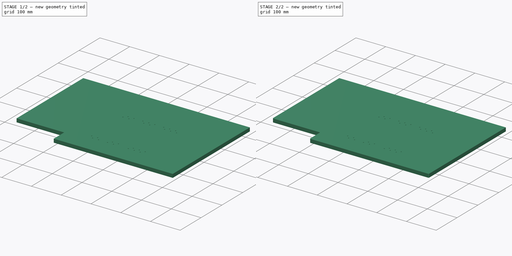
[diagram: build sequence overview — one tinted view per stage of 2, left to right]
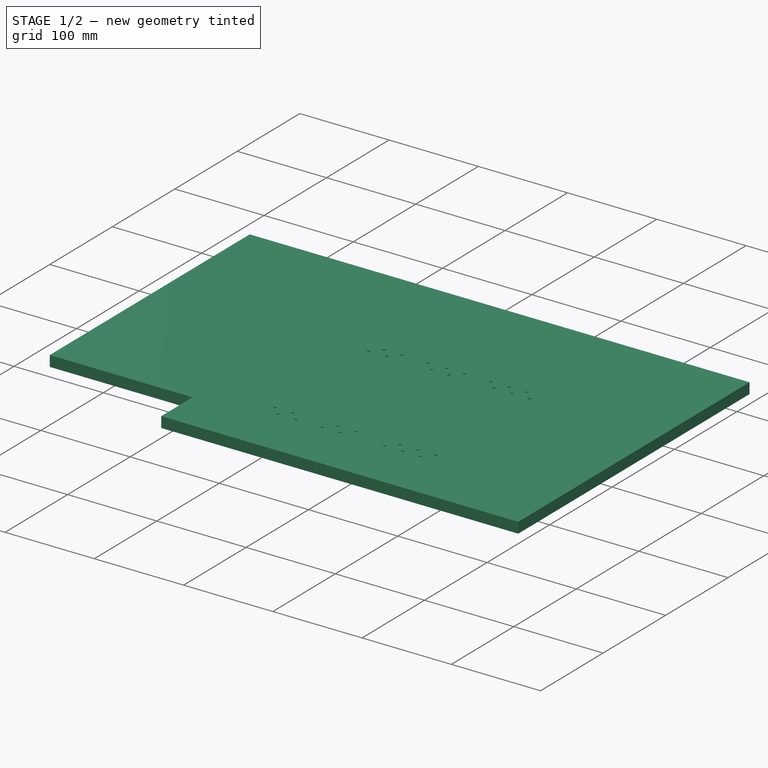
[diagram: stage 1 of 2 — iso view after this stage's code; geometry added in this stage tinted green]
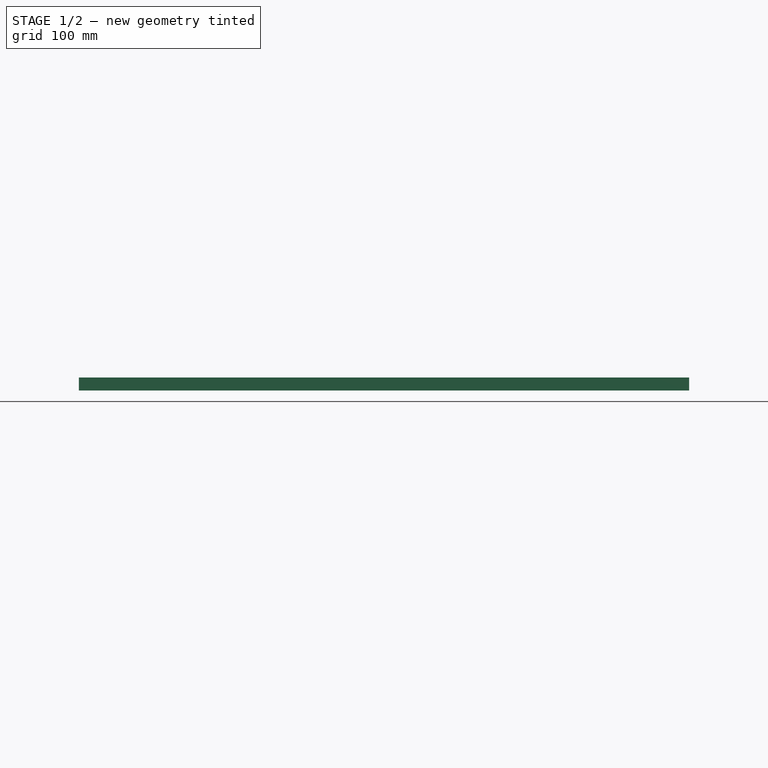
[diagram: stage 1 of 2 — front view after this stage's code; geometry added in this stage tinted green]
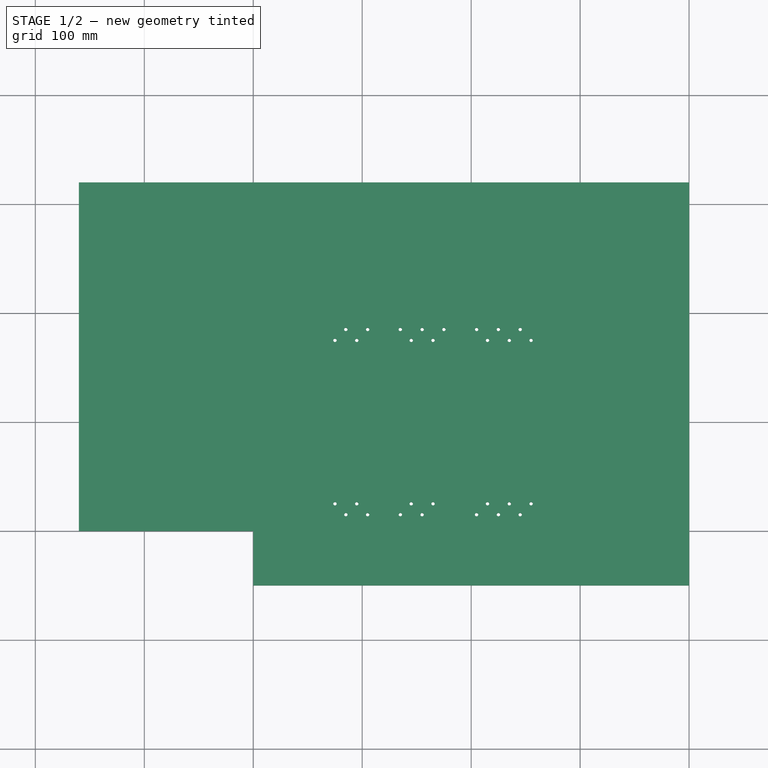
[diagram: stage 1 of 2 — top view after this stage's code; geometry added in this stage tinted green]
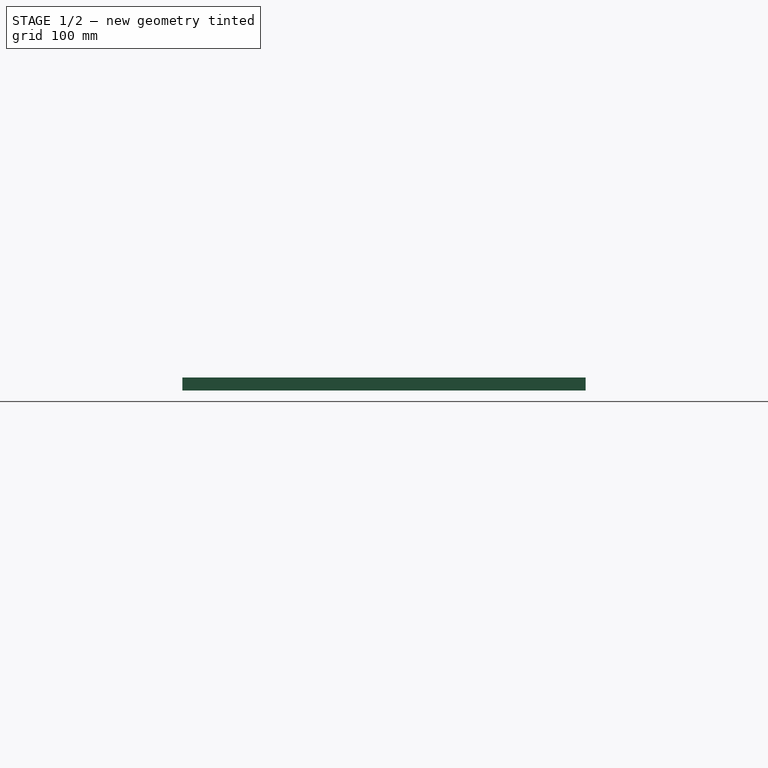
[diagram: stage 1 of 2 — right view after this stage's code; geometry added in this stage tinted green]
FCSTD DOCUMENT  (FreeCAD 0.19R24276 (Git))
Label: Osnovanie_3700x560x12_H12_as5
License: All rights reserved
LicenseURL: http://en.wikipedia.org/wiki/All_rights_reserved
objects: Sketcher::SketchObject×1, PartDesign::Pad×1, PartDesign::Fillet×1, PartDesign::Body×1
note: 6 computed .brp shape members not serialized (recipe doc carries the construction recipe); baked Part::Feature solids carry a one-line shape summary decoded from their .brp

FEATURE [Sketcher::SketchObject] Sketch  label="Sketch_370x560"
  FullyConstrained = true
  MapMode = 5
  Support = -> [XY_Plane]
  sketch-geometry (86):
    g0: LineSegment StartX=0 StartY=0 StartZ=0 EndX=400 EndY=0 EndZ=0
    g1: LineSegment StartX=400 StartY=0 StartZ=0 EndX=400 EndY=200 EndZ=0
    g2: LineSegment StartX=400 StartY=200 StartZ=0 EndX=0 EndY=200 EndZ=0
    g3: LineSegment StartX=0 StartY=200 StartZ=0 EndX=0 EndY=0 EndZ=0
    g4: LineSegment StartX=0 StartY=100 StartZ=0 EndX=400 EndY=100 EndZ=0
    g5: Circle CenterX=120 CenterY=100 CenterZ=0 NormalX=0 NormalY=0 NormalZ=1 AngleXU=0 Radius=110
    g6: LineSegment StartX=120 StartY=100 StartZ=0 EndX=120 EndY=0 EndZ=0
    g7: LineSegment StartX=55 StartY=0 StartZ=0 EndX=185 EndY=0 EndZ=0
    g8: LineSegment StartX=185 StartY=0 StartZ=0 EndX=185 EndY=40 EndZ=0
    g9: LineSegment StartX=185 StartY=40 StartZ=0 EndX=55 EndY=40 EndZ=0
    g10: LineSegment StartX=55 StartY=40 StartZ=0 EndX=55 EndY=0 EndZ=0
    g11: LineSegment StartX=55 StartY=25 StartZ=0 EndX=185 EndY=25 EndZ=0
    g12: LineSegment StartX=55 StartY=15 StartZ=0 EndX=185 EndY=15 EndZ=0
    g13: Circle CenterX=85 CenterY=15 CenterZ=0 NormalX=0 NormalY=0 NormalZ=1 AngleXU=0 Radius=1.5625
    g14: Circle CenterX=105 CenterY=15 CenterZ=0 NormalX=0 NormalY=0 NormalZ=1 AngleXU=0 Radius=1.5625
    g15: Circle CenterX=75 CenterY=25 CenterZ=0 NormalX=0 NormalY=0 NormalZ=1 AngleXU=0 Radius=1.5625
    g16: Circle CenterX=95 CenterY=25 CenterZ=0 NormalX=0 NormalY=0 NormalZ=1 AngleXU=0 Radius=1.5625
    g17: Circle CenterX=155 CenterY=15 CenterZ=0 NormalX=0 NormalY=0 NormalZ=1 AngleXU=0 Radius=1.5625
    g18: Circle CenterX=135 CenterY=15 CenterZ=0 NormalX=0 NormalY=0 NormalZ=1 AngleXU=0 Radius=1.5625
    g19: Circle CenterX=145 CenterY=25 CenterZ=0 NormalX=0 NormalY=0 NormalZ=1 AngleXU=0 Radius=1.5625
    g20: Circle CenterX=165 CenterY=25 CenterZ=0 NormalX=0 NormalY=0 NormalZ=1 AngleXU=0 Radius=1.5625
    g21: LineSegment StartX=55 StartY=200 StartZ=0 EndX=185 EndY=200 EndZ=0
    g22: LineSegment StartX=185 StartY=200 StartZ=0 EndX=185 EndY=160 EndZ=0
    g23: LineSegment StartX=185 StartY=160 StartZ=0 EndX=55 EndY=160 EndZ=0
    g24: LineSegment StartX=55 StartY=160 StartZ=0 EndX=55 EndY=200 EndZ=0
    g25: LineSegment StartX=55 StartY=175 StartZ=0 EndX=185 EndY=175 EndZ=0
    g26: LineSegment StartX=55 StartY=185 StartZ=0 EndX=185 EndY=185 EndZ=0
    g27: Circle CenterX=85 CenterY=185 CenterZ=0 NormalX=0 NormalY=0 NormalZ=1 AngleXU=0 Radius=1.5625
    g28: Circle CenterX=105 CenterY=185 CenterZ=0 NormalX=0 NormalY=0 NormalZ=1 AngleXU=0 Radius=1.5625
    g29: Circle CenterX=75 CenterY=175 CenterZ=0 NormalX=0 NormalY=0 NormalZ=1 AngleXU=0 Radius=1.5625
    g30: Circle CenterX=95 CenterY=175 CenterZ=0 NormalX=0 NormalY=0 NormalZ=1 AngleXU=0 Radius=1.5625
    g31: Circle CenterX=155 CenterY=185 CenterZ=0 NormalX=0 NormalY=0 NormalZ=1 AngleXU=0 Radius=1.5625
    g32: Circle CenterX=135 CenterY=185 CenterZ=0 NormalX=0 NormalY=0 NormalZ=1 AngleXU=0 Radius=1.5625
    g33: Circle CenterX=145 CenterY=175 CenterZ=0 NormalX=0 NormalY=0 NormalZ=1 AngleXU=0 Radius=1.5625
    g34: Circle CenterX=165 CenterY=175 CenterZ=0 NormalX=0 NormalY=0 NormalZ=1 AngleXU=0 Radius=1.5625
    g35: LineSegment StartX=400 StartY=0 StartZ=0 EndX=0 EndY=0 EndZ=0
    g36: LineSegment StartX=0 StartY=0 StartZ=0 EndX=0 EndY=-50 EndZ=0
    g37: LineSegment StartX=0 StartY=-50 StartZ=0 EndX=400 EndY=-50 EndZ=0
    g38: LineSegment StartX=400 StartY=-50 StartZ=0 EndX=400 EndY=0 EndZ=0
    g39: LineSegment StartX=400 StartY=320 StartZ=0 EndX=400 EndY=200 EndZ=0
    g40: LineSegment StartX=120 StartY=0 StartZ=0 EndX=-160 EndY=0 EndZ=0
    g41: LineSegment StartX=-160 StartY=0 StartZ=0 EndX=-160 EndY=320 EndZ=0
    g42: LineSegment StartX=-160 StartY=320 StartZ=0 EndX=120 EndY=320 EndZ=0
    g43: LineSegment StartX=120 StartY=320 StartZ=0 EndX=120 EndY=0 EndZ=0
    g44: LineSegment StartX=185 StartY=0 StartZ=0 EndX=185 EndY=-50 EndZ=0
    g45: LineSegment StartX=155 StartY=0 StartZ=0 EndX=155 EndY=-50 EndZ=0
    g46: LineSegment StartX=185 StartY=0 StartZ=0 EndX=205 EndY=0 EndZ=0
    g47: LineSegment StartX=205 StartY=0 StartZ=0 EndX=205 EndY=-20 EndZ=0
    g48: LineSegment StartX=205 StartY=-20 StartZ=0 EndX=185 EndY=-20 EndZ=0
    g49: LineSegment StartX=185 StartY=-20 StartZ=0 EndX=185 EndY=0 EndZ=0
    g50: LineSegment StartX=240 StartY=210 StartZ=0 EndX=40 EndY=210 EndZ=0
    g51: LineSegment StartX=40 StartY=210 StartZ=0 EndX=40 EndY=317 EndZ=0
    g52: LineSegment StartX=40 StartY=317 StartZ=0 EndX=240 EndY=317 EndZ=0
    g53: LineSegment StartX=240 StartY=317 StartZ=0 EndX=240 EndY=210 EndZ=0
    g54: LineSegment StartX=400 StartY=320 StartZ=0 EndX=-160 EndY=320 EndZ=0
    g55: LineSegment StartX=400 StartY=-50 StartZ=0 EndX=0 EndY=-50 EndZ=0
    g56: LineSegment StartX=0 StartY=0 StartZ=0 EndX=0 EndY=-50 EndZ=0
    g57: LineSegment StartX=0 StartY=0 StartZ=0 EndX=-160 EndY=0 EndZ=0
    g58: LineSegment StartX=-160 StartY=0 StartZ=0 EndX=-160 EndY=320 EndZ=0
    g59: LineSegment StartX=-160 StartY=320 StartZ=0 EndX=400 EndY=320 EndZ=0
    g60: LineSegment StartX=400 StartY=320 StartZ=0 EndX=400 EndY=-50 EndZ=0
    g61: LineSegment StartX=255 StartY=200 StartZ=0 EndX=125 EndY=200 EndZ=0
    g62: LineSegment StartX=125 StartY=200 StartZ=0 EndX=125 EndY=160 EndZ=0
    g63: LineSegment StartX=125 StartY=160 StartZ=0 EndX=255 EndY=160 EndZ=0
    g64: LineSegment StartX=255 StartY=160 StartZ=0 EndX=255 EndY=200 EndZ=0
    g65: Circle CenterX=225 CenterY=185 CenterZ=0 NormalX=0 NormalY=0 NormalZ=1 AngleXU=0 Radius=1.5625
    g66: Circle CenterX=205 CenterY=185 CenterZ=0 NormalX=0 NormalY=0 NormalZ=1 AngleXU=0 Radius=1.5625
    g67: Circle CenterX=235 CenterY=175 CenterZ=0 NormalX=0 NormalY=0 NormalZ=1 AngleXU=0 Radius=1.5625
    g68: Circle CenterX=215 CenterY=175 CenterZ=0 NormalX=0 NormalY=0 NormalZ=1 AngleXU=0 Radius=1.5625
    g69: Circle CenterX=155 CenterY=185 CenterZ=0 NormalX=0 NormalY=0 NormalZ=1 AngleXU=0 Radius=1.5625
    g70: Circle CenterX=175 CenterY=185 CenterZ=0 NormalX=0 NormalY=0 NormalZ=1 AngleXU=0 Radius=1.5625
    g71: Circle CenterX=165 CenterY=175 CenterZ=0 NormalX=0 NormalY=0 NormalZ=1 AngleXU=0 Radius=1.5625
    g72: Circle CenterX=145 CenterY=175 CenterZ=0 NormalX=0 NormalY=0 NormalZ=1 AngleXU=0 Radius=1.5625
    g73: LineSegment StartX=190 StartY=160 StartZ=0 EndX=190 EndY=200 EndZ=0
    g74: LineSegment StartX=275 StartY=0 StartZ=0 EndX=275 EndY=200 EndZ=0
    g75: Circle CenterX=235 CenterY=25 CenterZ=0 NormalX=0 NormalY=0 NormalZ=1 AngleXU=0 Radius=1.5625
    g76: Circle CenterX=215 CenterY=25 CenterZ=0 NormalX=0 NormalY=0 NormalZ=1 AngleXU=0 Radius=1.5625
    g77: Circle CenterX=205 CenterY=15 CenterZ=0 NormalX=0 NormalY=0 NormalZ=1 AngleXU=0 Radius=1.5625
    g78: LineSegment StartX=190 StartY=40 StartZ=0 EndX=190 EndY=0 EndZ=0
    g79: LineSegment StartX=255 StartY=40 StartZ=0 EndX=255 EndY=0 EndZ=0
    g80: Circle CenterX=225 CenterY=15 CenterZ=0 NormalX=0 NormalY=0 NormalZ=1 AngleXU=0 Radius=1.5625
    g81: LineSegment StartX=255 StartY=40 StartZ=0 EndX=190 EndY=40 EndZ=0
    g82: Circle CenterX=245 CenterY=15 CenterZ=0 NormalX=0 NormalY=0 NormalZ=1 AngleXU=0 Radius=1.5625
    g83: Circle CenterX=255 CenterY=25 CenterZ=0 NormalX=0 NormalY=0 NormalZ=1 AngleXU=0 Radius=1.5625
    g84: Circle CenterX=245 CenterY=185 CenterZ=0 NormalX=0 NormalY=0 NormalZ=1 AngleXU=0 Radius=1.5625
    g85: Circle CenterX=255 CenterY=175 CenterZ=0 NormalX=0 NormalY=0 NormalZ=1 AngleXU=0 Radius=1.5625
  constraints (253):
    c: Coincident(g0,g1)
    c: Coincident(g1,g2)
    c: Coincident(g2,g3)
    c: Coincident(g3,g0)
    c: Horizontal(g0)
    c: Horizontal(g2)
    c: Vertical(g1)
    c: Vertical(g3)
    c: Coincident(g0,g-1)
    c: DistanceY(g1,g1) = 200
    c: DistanceX(g0,g0) = 400
    c: Horizontal(g4)
    c: Symmetric(g0,g1,g4)
    c: DistanceX(g0,g6) = 120
    c: PointOnObject(g6,g4)
    c: Coincident(g5,g6)
    c: Diameter(g5) = 220
    c: Coincident(g7,g8)
    c: Coincident(g8,g9)
    c: Coincident(g9,g10)
    c: Coincident(g10,g7)
    c: Horizontal(g7)
    c: Horizontal(g9)
    c: Vertical(g8)
    c: Vertical(g10)
    c: PointOnObject(g7,g0)
    c: DistanceX(g9,g9) = 130
    c: Symmetric(g7,g7,g6)
    c: DistanceY(g8,g8) = 40
    c: PointOnObject(g12,g8)
    c: PointOnObject(g11,g8)
    c: PointOnObject(g11,g10)
    c: PointOnObject(g12,g10)
    c: DistanceY(g7,g12) = 15
    c: DistanceY(g7,g11) = 25
    c: Horizontal(g11)
    c: Horizontal(g12)
    c: PointOnObject(g13,g12)
    c: PointOnObject(g14,g12)
    c: PointOnObject(g15,g11)
    c: PointOnObject(g16,g11)
    c: Equal(g13,g14)
    c: Equal(g14,g15)
    c: Equal(g15,g16)
    c: Diameter(g14) = 3.125
    c: DistanceX(g9,g15) = 20
    c: DistanceX(g15,g16) = 20
    c: DistanceX(g13,g14) = 20
    c: DistanceX(g15,g13) = 10
    c: Equal(g17,g18)
    c: Equal(g18,g20)
    c: Equal(g20,g19)
    c: Diameter(g18) = 3.125
    c: Coincident(g21,g22)
    c: Coincident(g22,g23)
    c: Coincident(g23,g24)
    c: Coincident(g24,g21)
    c: Horizontal(g21)
    c: Horizontal(g23)
    c: Vertical(g22)
    c: Vertical(g24)
    c: PointOnObject(g26,g22)
    c: PointOnObject(g25,g22)
    c: PointOnObject(g25,g24)
    c: PointOnObject(g26,g24)
    c: Horizontal(g25)
    c: Horizontal(g26)
    c: PointOnObject(g27,g26)
    c: PointOnObject(g28,g26)
    c: PointOnObject(g29,g25)
    c: PointOnObject(g30,g25)
    c: Equal(g27,g28)
    c: Equal(g28,g29)
    c: Equal(g29,g30)
    c: Diameter(g28) = 3.125
    c: Equal(g31,g32)
    c: Equal(g32,g34)
    c: Equal(g34,g33)
    c: Diameter(g32) = 3.125
    c: PointOnObject(g4,g3)
    c: Coincident(g35,g36)
    c: Coincident(g36,g37)
    c: Coincident(g37,g38)
    c: Coincident(g38,g35)
    c: Horizontal(g35)
    c: Horizontal(g37)
    c: Vertical(g36)
    c: Vertical(g38)
    c: Coincident(g35,g0)
    c: Vertical(g35,g0)
    c: Vertical(g39)
    c: Coincident(g40,g41)
    c: Coincident(g41,g42)
    c: Coincident(g42,g43)
    c: Coincident(g43,g40)
    c: Horizontal(g40)
    c: Horizontal(g42)
    c: Vertical(g41)
    c: Vertical(g43)
    c: Coincident(g40,g6)
    c: Coincident(g44,g7)
    c: Vertical(g44)
    c: Vertical(g45)
    c: DistanceY(g36,g36) = 50
    c: PointOnObject(g45,g37)
    c: PointOnObject(g44,g37)
    c: Coincident(g46,g47)
    c: Coincident(g47,g48)
    c: Coincident(g48,g49)
    c: Coincident(g49,g46)
    c: Horizontal(g46)
    c: Horizontal(g48)
    c: Vertical(g47)
    c: Vertical(g49)
    c: Coincident(g46,g7)
    c: DistanceX(g48,g48) = 20
    c: Equal(g48,g47)
    c: Coincident(g50,g51)
    c: Coincident(g51,g52)
    c: Coincident(g52,g53)
    c: Coincident(g53,g50)
    c: Horizontal(g50)
    c: Horizontal(g52)
    c: Vertical(g51)
    c: Vertical(g53)
    c: DistanceY(g53,g53) = 107
    c: DistanceX(g52,g52) = 200
    c: DistanceY(g2,g50) = 10
    c: DistanceX(g50,g21) = 15
    c: Equal(g9,g23)
    c: Vertical(g23,g9)
    c: Vertical(g29,g15)
    c: Vertical(g30,g16)
    c: Vertical(g27,g13)
    c: Vertical(g32,g18)
    c: Vertical(g19,g33)
    c: Vertical(g31,g17)
    c: Vertical(g34,g20)
    c: Equal(g10,g24)
    c: Horizontal(g21,g2)
    c: DistanceY(g26,g2) = 15
    c: DistanceY(g25,g2) = 25
    c: Coincident(g54,g39)
    c: Coincident(g54,g41)
    c: Horizontal(g54)
    c: Vertical(g6)
    c: Coincident(g39,g1)
    c: PointOnObject(g45,g0)
    c: DistanceX(g45,g44) = 30
    c: Coincident(g55,g37)
    c: Coincident(g56,g-1)
    c: Coincident(g56,g55)
    c: Coincident(g57,g56)
    c: Coincident(g58,g40)
    c: Coincident(g59,g41)
    c: Coincident(g60,g39)
    c: Coincident(g60,g55)
    c: Coincident(g55,g36)
    c: Coincident(g57,g58)
    c: Coincident(g58,g59)
    c: Coincident(g59,g60)
    c: Horizontal(g18,g14)
    c: Horizontal(g17,g18)
    c: Horizontal(g20,g19)
    c: Horizontal(g19,g16)
    c: Vertical(g28,g14)
    c: DistanceX(g20,g11) = 20
    c: DistanceX(g19,g20) = 20
    c: DistanceX(g17,g20) = 10
    c: DistanceX(g18,g17) = 20
    c: Horizontal(g34,g30)
    c: Horizontal(g30,g33)
    c: Horizontal(g31,g32)
    c: Horizontal(g32,g28)
    c: Coincident(g61,g62)
    c: Coincident(g62,g63)
    c: Coincident(g63,g64)
    c: Coincident(g64,g61)
    c: Horizontal(g61)
    c: Horizontal(g63)
    c: Vertical(g62)
    c: Vertical(g64)
    c: Equal(g65,g66)
    c: Equal(g66,g67)
    c: Equal(g67,g68)
    c: Diameter(g66) = 3.125
    c: Equal(g69,g70)
    c: Equal(g70,g72)
    c: Equal(g72,g71)
    c: Diameter(g70) = 3.125
    c: Horizontal(g69,g70)
    c: Horizontal(g70,g66)
    c: Horizontal(g67,g68)
    c: Horizontal(g68,g71)
    c: Horizontal(g71,g72)
    c: DistanceY(g69,g61) = 15
    c: DistanceY(g72,g61) = 25
    c: DistanceX(g67,g61) = 20
    c: DistanceX(g68,g67) = 20
    c: DistanceX(g65,g67) = 10
    c: DistanceX(g66,g65) = 20
    c: DistanceY(g64,g64) = 40
    c: DistanceX(g62,g72) = 20
    c: DistanceX(g72,g69) = 10
    c: DistanceX(g72,g71) = 20
    c: DistanceX(g69,g70) = 20
    c: DistanceX(g63,g63) = 130
    c: Horizontal(g65,g66)
    c: Coincident(g72,g33)
    c: Vertical(g73)
    c: PointOnObject(g73,g63)
    c: PointOnObject(g73,g2)
    c: DistanceX(g73,g66) = 15
    c: DistanceX(g58,g59) = 560
    c: DistanceY(g55,g59) = 370
    c: Vertical(g74)
    c: PointOnObject(g74,g2)
    c: PointOnObject(g74,g0)
    c: DistanceX(g48,g74) = 90
    c: Vertical(g79)
    c: Equal(g80,g77)
    c: Equal(g77,g75)
    c: Equal(g75,g76)
    c: Diameter(g77) = 3.125
    c: Vertical(g78)
    c: Vertical(g63,g79)
    c: Vertical(g75,g67)
    c: Vertical(g80,g65)
    c: Vertical(g68,g76)
    c: Vertical(g77,g66)
    c: Vertical(g78,g73)
    c: Horizontal(g78,g8)
    c: Horizontal(g8,g79)
    c: Horizontal(g79,g74)
    c: Horizontal(g78,g7)
    c: Horizontal(g76,g75)
    c: Horizontal(g75,g20)
    c: Horizontal(g80,g77)
    c: Horizontal(g77,g17)
    c: Coincident(g81,g79)
    c: Coincident(g81,g78)
    c: Horizontal(g82,g80)
    c: Equal(g82,g80)
    c: DistanceX(g80,g82) = 20
    c: Horizontal(g83,g75)
    c: Equal(g83,g75)
    c: DistanceX(g75,g83) = 20
    c: Equal(g85,g84)
    c: Equal(g84,g67)
    c: Horizontal(g85,g67)
    c: Horizontal(g84,g65)
    c: Vertical(g84,g82)
    c: Vertical(g83,g85)
FEATURE [PartDesign::Pad] Pad  label="Pad_h12"
  Direction = (1,1,1)
  Length = 12
  Length2 = 100
  Profile = -> Sketch
  Type = 0
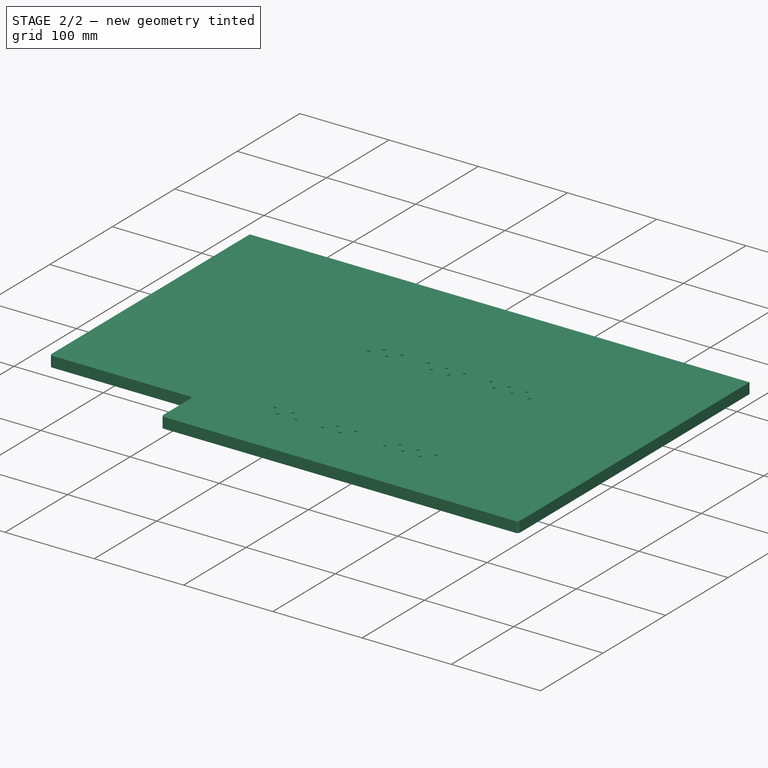
[diagram: stage 2 of 2 — iso view after this stage's code; geometry added in this stage tinted green]
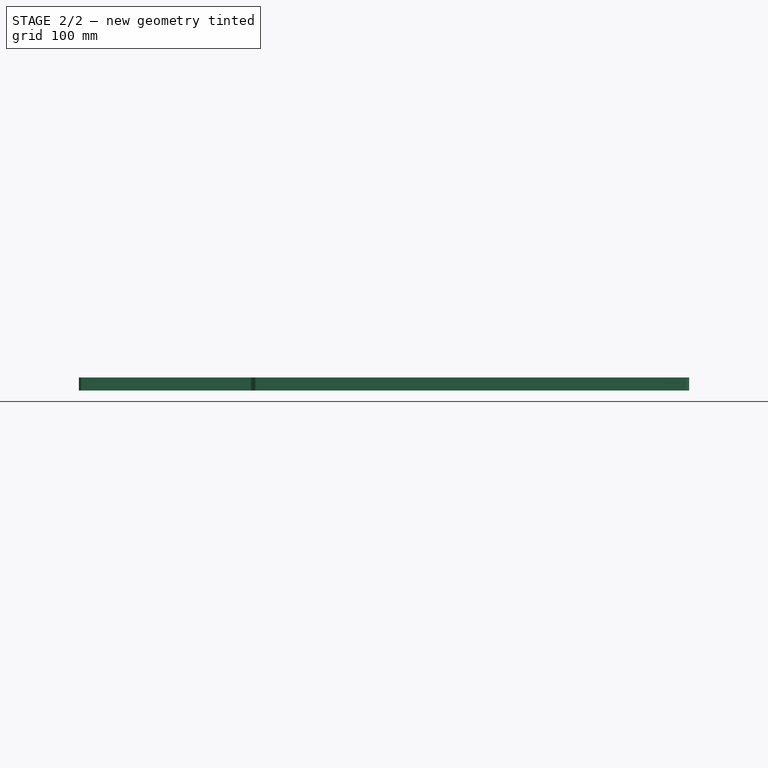
[diagram: stage 2 of 2 — front view after this stage's code; geometry added in this stage tinted green]
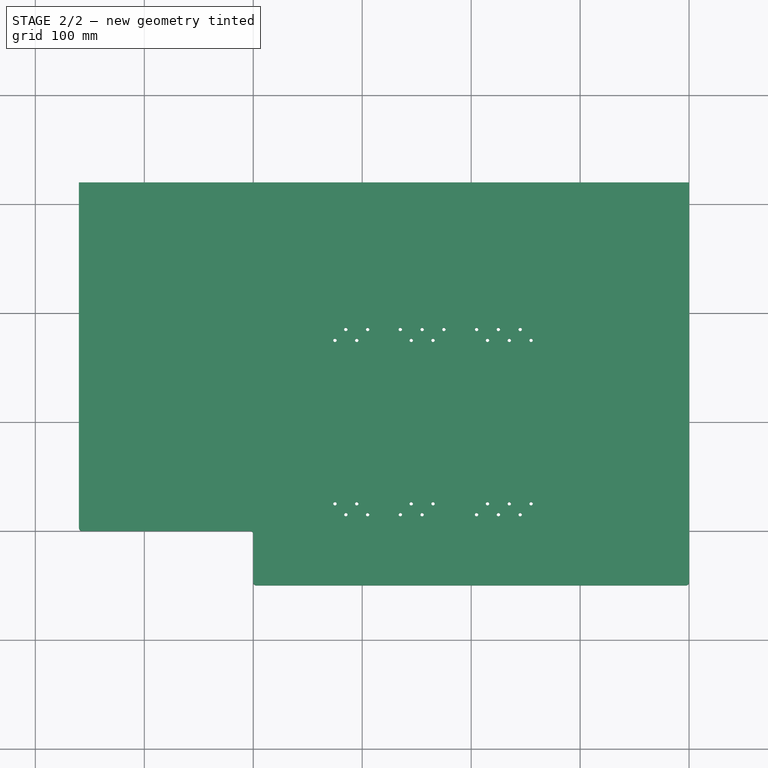
[diagram: stage 2 of 2 — top view after this stage's code; geometry added in this stage tinted green]
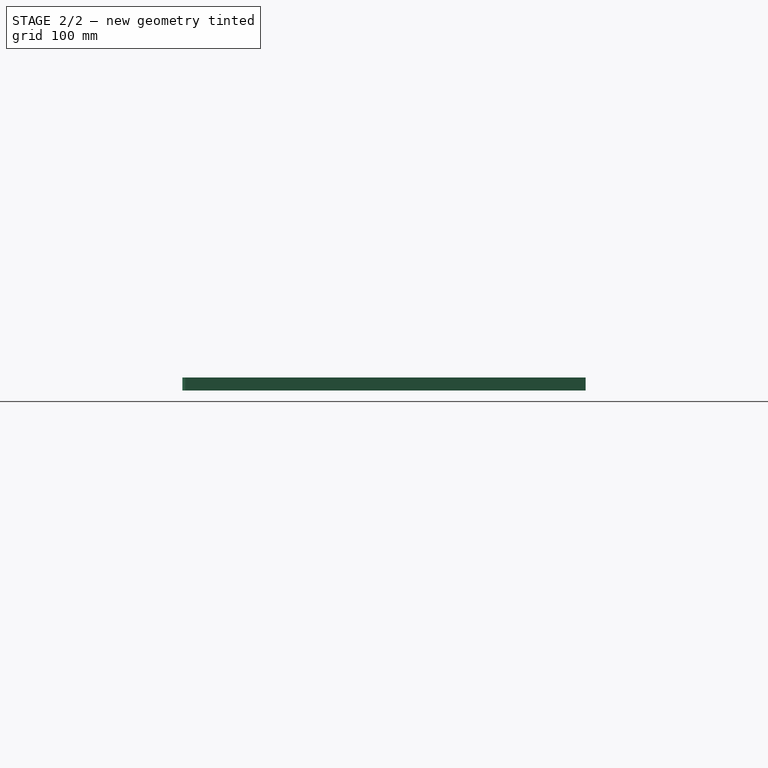
[diagram: stage 2 of 2 — right view after this stage's code; geometry added in this stage tinted green]
FEATURE [PartDesign::Fillet] Fillet
  Base = -> Pad [Edge1,Edge2,Edge5,Edge8]
  BaseFeature = -> Pad
  Radius = 3
  SupportTransform = false
FEATURE [PartDesign::Body] Body
  Group = -> [Sketch,Pad,Fillet]
  Origin = -> Origin
  Tip = -> Fillet
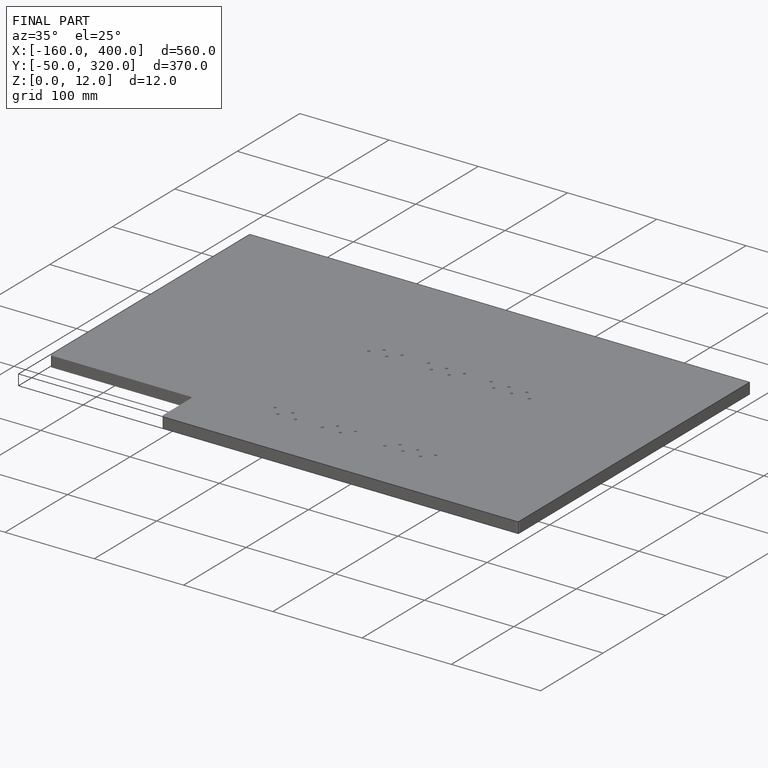
[diagram: finished part — iso view with bounding-box wireframe]
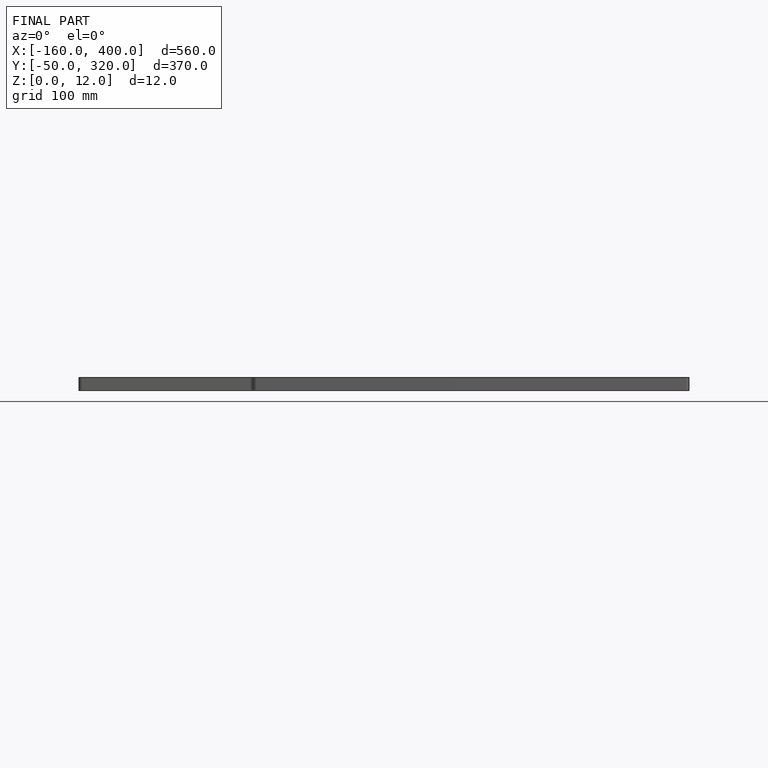
[diagram: finished part — front view with bounding-box wireframe]
